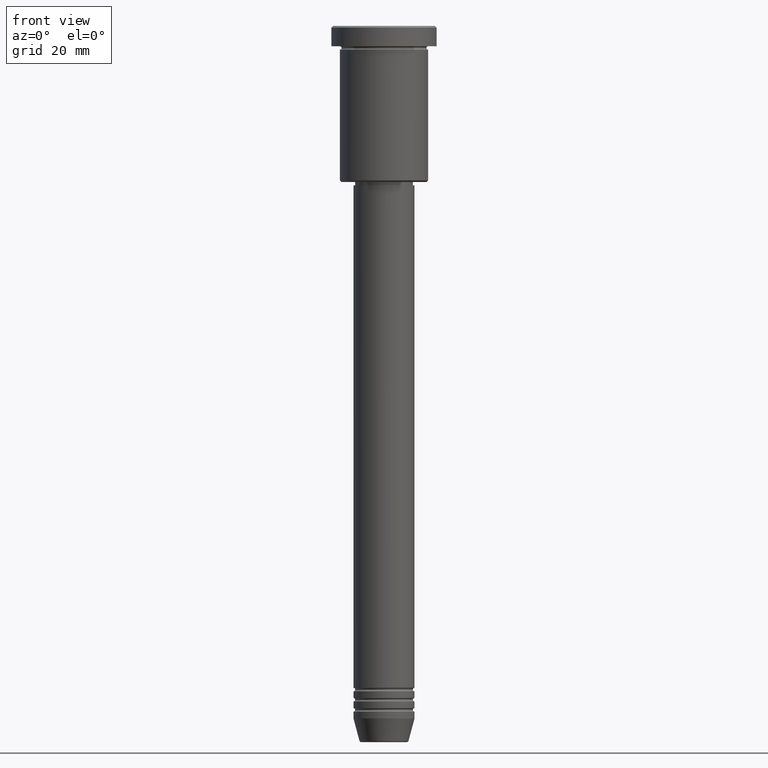
[diagram: clean part render]
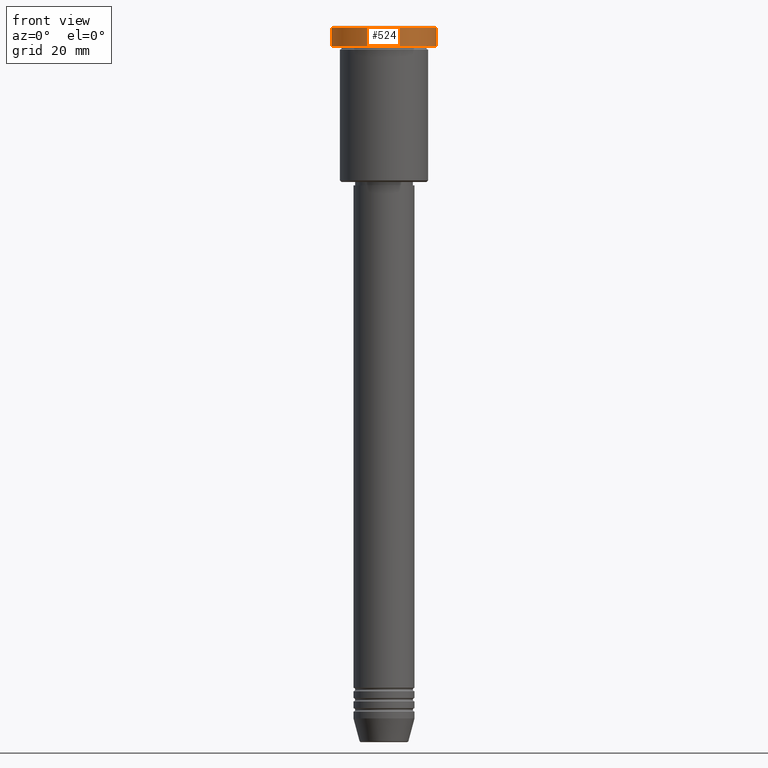
[diagram: same view with one face highlighted and labeled with its STEP entity id]
A machine part, front view. The second image highlights one B-rep face of the part: STEP entity #524.
In plain terms, the highlighted cylindrical surface (partial cylindrical patch) has radius 15.5 mm, axis along (-0, -0, 1).
Its self-contained STEP definition (entity closure, byte-faithful):
#3 = FACE_OUTER_BOUND ( 'NONE', #111, .T. ) ;
#5 = CARTESIAN_POINT ( 'NONE',  ( 0.000000000000000000, 0.000000000000000000, -0.4999999999999848455 ) ) ;
#15 = AXIS2_PLACEMENT_3D ( 'NONE', #5, #1011, #368 ) ;
#68 = VECTOR ( 'NONE', #971, 1000.000000000000000 ) ;
#99 = EDGE_CURVE ( 'NONE', #1036, #928, #810, .T. ) ;
#111 = EDGE_LOOP ( 'NONE', ( #477, #220, #574, #936 ) ) ;
#125 = CARTESIAN_POINT ( 'NONE',  ( 15.50000000000000000, 0.000000000000000000, 0.000000000000000000 ) ) ;
#131 = DIRECTION ( 'NONE',  ( -0.000000000000000000, -0.000000000000000000, 1.000000000000000000 ) ) ;
#220 = ORIENTED_EDGE ( 'NONE', *, *, #99, .T. ) ;
#268 = LINE ( 'NONE', #125, #816 ) ;
#293 = CARTESIAN_POINT ( 'NONE',  ( -15.50000000000000000, 1.898202538678397557E-15, -5.999999999999995559 ) ) ;
#295 = AXIS2_PLACEMENT_3D ( 'NONE', #719, #787, #706 ) ;
#367 = CARTESIAN_POINT ( 'NONE',  ( 0.000000000000000000, 0.000000000000000000, 0.000000000000000000 ) ) ;
#368 = DIRECTION ( 'NONE',  ( 1.000000000000000000, 0.000000000000000000, 0.000000000000000000 ) ) ;
#390 = CARTESIAN_POINT ( 'NONE',  ( -15.50000000000000000, 1.898202538678397557E-15, -0.4999999999999848455 ) ) ;
#477 = ORIENTED_EDGE ( 'NONE', *, *, #1145, .F. ) ;
#524 = ADVANCED_FACE ( 'NONE', ( #3 ), #820, .T. ) ;
#574 = ORIENTED_EDGE ( 'NONE', *, *, #1006, .T. ) ;
#602 = LINE ( 'NONE', #886, #68 ) ;
#619 = VERTEX_POINT ( 'NONE', #767 ) ;
#706 = DIRECTION ( 'NONE',  ( 1.000000000000000000, 0.000000000000000000, 0.000000000000000000 ) ) ;
#719 = CARTESIAN_POINT ( 'NONE',  ( 0.000000000000000000, 0.000000000000000000, -5.999999999999995559 ) ) ;
#767 = CARTESIAN_POINT ( 'NONE',  ( 15.50000000000000000, 0.000000000000000000, -0.4999999999999848455 ) ) ;
#787 = DIRECTION ( 'NONE',  ( -0.000000000000000000, -0.000000000000000000, 1.000000000000000000 ) ) ;
#810 = CIRCLE ( 'NONE', #295, 15.50000000000000000 ) ;
#816 = VECTOR ( 'NONE', #131, 1000.000000000000000 ) ;
#820 = CYLINDRICAL_SURFACE ( 'NONE', #1157, 15.50000000000000000 ) ;
#886 = CARTESIAN_POINT ( 'NONE',  ( -15.50000000000000000, 1.898202538678397557E-15, 0.000000000000000000 ) ) ;
#928 = VERTEX_POINT ( 'NONE', #1017 ) ;
#936 = ORIENTED_EDGE ( 'NONE', *, *, #1105, .T. ) ;
#971 = DIRECTION ( 'NONE',  ( -0.000000000000000000, -0.000000000000000000, 1.000000000000000000 ) ) ;
#1006 = EDGE_CURVE ( 'NONE', #928, #619, #268, .T. ) ;
#1011 = DIRECTION ( 'NONE',  ( 0.000000000000000000, 0.000000000000000000, -1.000000000000000000 ) ) ;
#1017 = CARTESIAN_POINT ( 'NONE',  ( 15.50000000000000000, 0.000000000000000000, -5.999999999999995559 ) ) ;
#1036 = VERTEX_POINT ( 'NONE', #293 ) ;
#1085 = DIRECTION ( 'NONE',  ( -0.000000000000000000, -0.000000000000000000, 1.000000000000000000 ) ) ;
#1105 = EDGE_CURVE ( 'NONE', #619, #1122, #1179, .T. ) ;
#1122 = VERTEX_POINT ( 'NONE', #390 ) ;
#1145 = EDGE_CURVE ( 'NONE', #1036, #1122, #602, .T. ) ;
#1157 = AXIS2_PLACEMENT_3D ( 'NONE', #367, #1085, #1168 ) ;
#1168 = DIRECTION ( 'NONE',  ( 1.000000000000000000, 0.000000000000000000, 0.000000000000000000 ) ) ;
#1179 = CIRCLE ( 'NONE', #15, 15.50000000000000000 ) ;